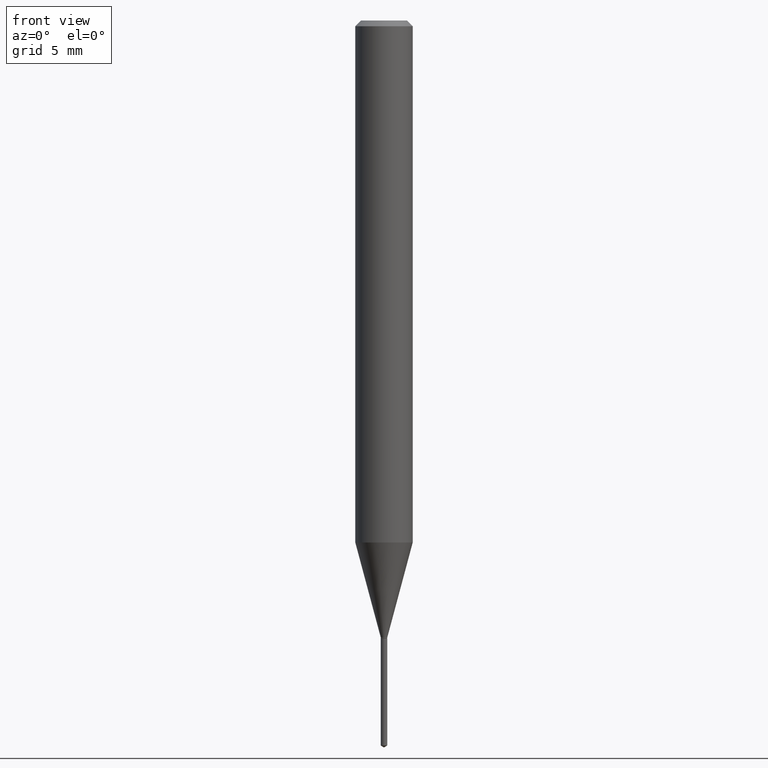
[diagram: clean part render]
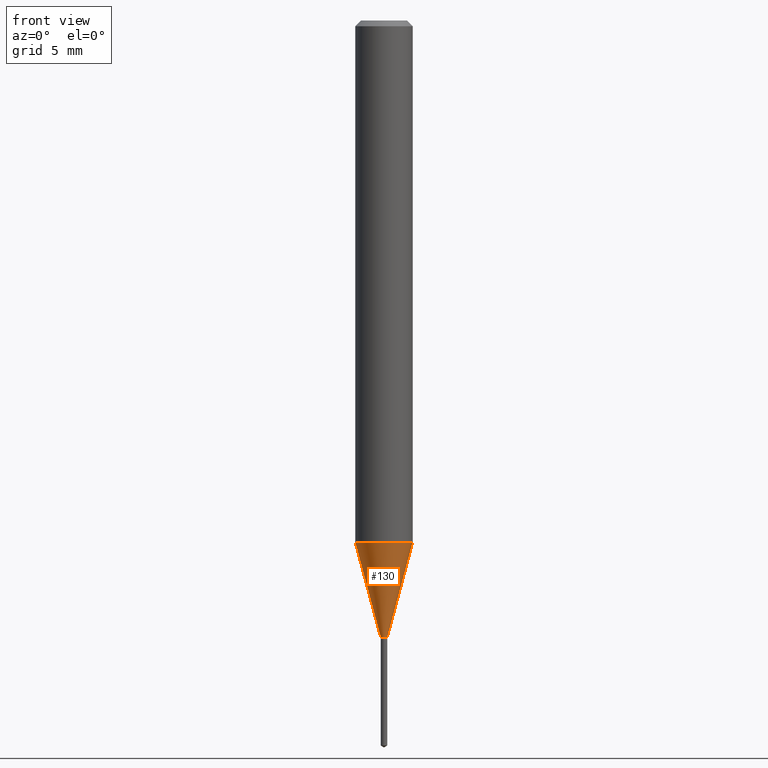
[diagram: same view with one face highlighted and labeled with its STEP entity id]
A machine part, front view. The second image highlights one B-rep face of the part: STEP entity #130.
In plain terms, the highlighted conical surface has half-angle 15 deg.
Its self-contained STEP definition (entity closure, byte-faithful):
#31 = FACE_OUTER_BOUND ( 'NONE', #178, .T. ) ;
#32 = VECTOR ( 'NONE', #186, 39.37007874015747433 ) ;
#34 = CARTESIAN_POINT ( 'NONE',  ( -0.006700000000000000226, -4.388146103637346948E-15, -1.269699999999999829 ) ) ;
#37 = LINE ( 'NONE', #153, #32 ) ;
#45 = CARTESIAN_POINT ( 'NONE',  ( 0.006700000000000000226, -4.479919705869639163E-15, -1.269699999999999829 ) ) ;
#57 = VERTEX_POINT ( 'NONE', #106 ) ;
#76 = ORIENTED_EDGE ( 'NONE', *, *, #85, .F. ) ;
#85 = EDGE_CURVE ( 'NONE', #381, #57, #100, .T. ) ;
#90 = ORIENTED_EDGE ( 'NONE', *, *, #210, .T. ) ;
#100 = LINE ( 'NONE', #167, #207 ) ;
#105 = CARTESIAN_POINT ( 'NONE',  ( 3.105011743213267483E-29, -4.433133855929141290E-15, -1.269699999999999829 ) ) ;
#106 = CARTESIAN_POINT ( 'NONE',  ( -0.05905000000000013710, -3.331417676437672997E-15, -1.074327140223769073 ) ) ;
#120 = AXIS2_PLACEMENT_3D ( 'NONE', #405, #213, #484 ) ;
#130 = ADVANCED_FACE ( 'NONE', ( #31 ), #173, .T. ) ;
#153 = CARTESIAN_POINT ( 'NONE',  ( 0.006700000000000000226, -4.479919705869639163E-15, -1.269699999999999829 ) ) ;
#167 = CARTESIAN_POINT ( 'NONE',  ( -0.006700000000000000226, -4.385527492633215087E-15, -1.269699999999999829 ) ) ;
#173 = CONICAL_SURFACE ( 'NONE', #416, 0.006700000000000000226, 0.2617993877991500740 ) ;
#174 = DIRECTION ( 'NONE',  ( -2.445468806185136597E-29, 3.491481338843145583E-15, 1.000000000000000000 ) ) ;
#175 = AXIS2_PLACEMENT_3D ( 'NONE', #293, #374, #294 ) ;
#178 = EDGE_LOOP ( 'NONE', ( #76, #341, #90, #355 ) ) ;
#183 = CARTESIAN_POINT ( 'NONE',  ( 0.05905000000000013710, -4.163337108021387805E-15, -1.074327140223769073 ) ) ;
#186 = DIRECTION ( 'NONE',  ( 0.2588190451025213501, 1.565188264969621968E-15, 0.9659258262890682012 ) ) ;
#190 = EDGE_CURVE ( 'NONE', #381, #470, #248, .T. ) ;
#207 = VECTOR ( 'NONE', #311, 39.37007874015747433 ) ;
#210 = EDGE_CURVE ( 'NONE', #470, #258, #37, .T. ) ;
#213 = DIRECTION ( 'NONE',  ( -2.445468806185136597E-29, 3.491481338843145583E-15, 1.000000000000000000 ) ) ;
#248 = CIRCLE ( 'NONE', #120, 0.006700000000000000226 ) ;
#258 = VERTEX_POINT ( 'NONE', #183 ) ;
#293 = CARTESIAN_POINT ( 'NONE',  ( 2.627233509055312695E-29, -3.750993161904012885E-15, -1.074327140223769073 ) ) ;
#294 = DIRECTION ( 'NONE',  ( 1.000000000000000000, -6.982962677686265133E-15, 0.000000000000000000 ) ) ;
#298 = CIRCLE ( 'NONE', #175, 0.05905000000000013016 ) ;
#311 = DIRECTION ( 'NONE',  ( -0.2588190451025213501, 5.211531920934551042E-15, 0.9659258262890682012 ) ) ;
#341 = ORIENTED_EDGE ( 'NONE', *, *, #190, .T. ) ;
#355 = ORIENTED_EDGE ( 'NONE', *, *, #462, .F. ) ;
#374 = DIRECTION ( 'NONE',  ( -2.445468806185136597E-29, 3.491481338843145583E-15, 1.000000000000000000 ) ) ;
#381 = VERTEX_POINT ( 'NONE', #34 ) ;
#405 = CARTESIAN_POINT ( 'NONE',  ( 3.105011743213267483E-29, -4.433133855929141290E-15, -1.269699999999999829 ) ) ;
#416 = AXIS2_PLACEMENT_3D ( 'NONE', #105, #174, #472 ) ;
#462 = EDGE_CURVE ( 'NONE', #57, #258, #298, .T. ) ;
#470 = VERTEX_POINT ( 'NONE', #45 ) ;
#472 = DIRECTION ( 'NONE',  ( 1.000000000000000000, -6.982962677686318775E-15, 0.000000000000000000 ) ) ;
#484 = DIRECTION ( 'NONE',  ( 1.000000000000000000, -6.982962677686318775E-15, 0.000000000000000000 ) ) ;